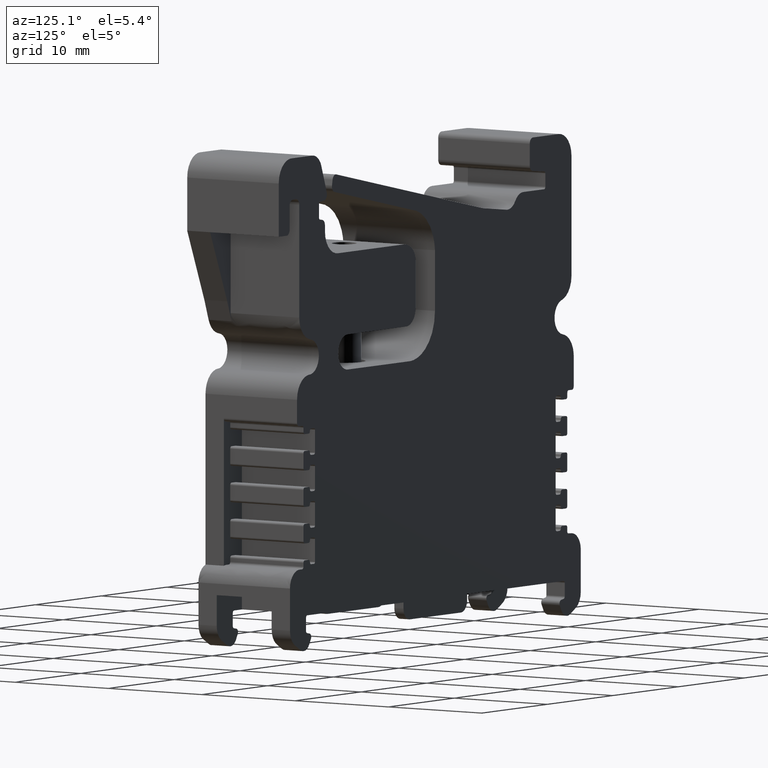
[diagram: clean part render]
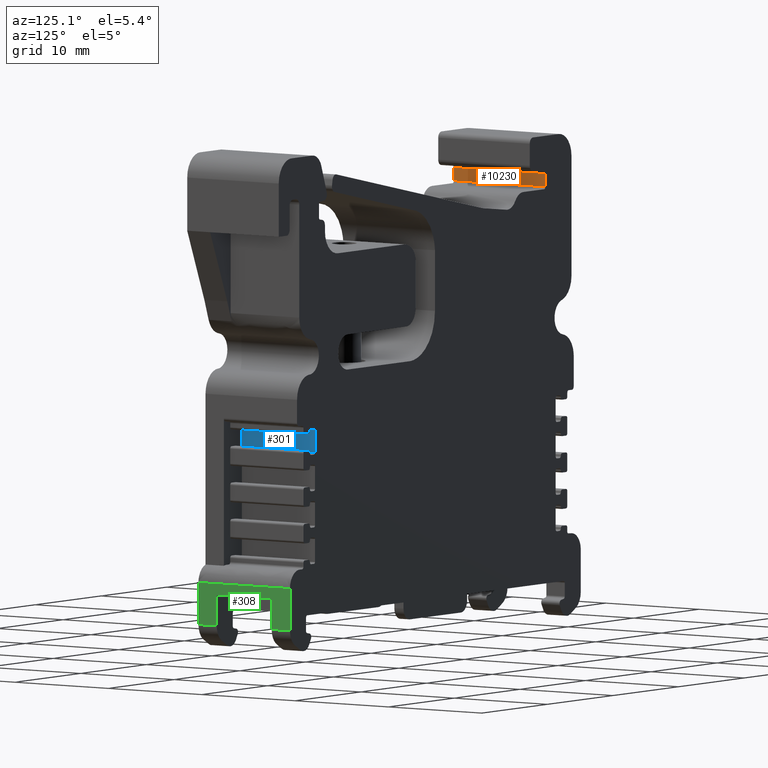
[diagram: same view with three faces highlighted in distinct colors, each labeled with its STEP entity id]
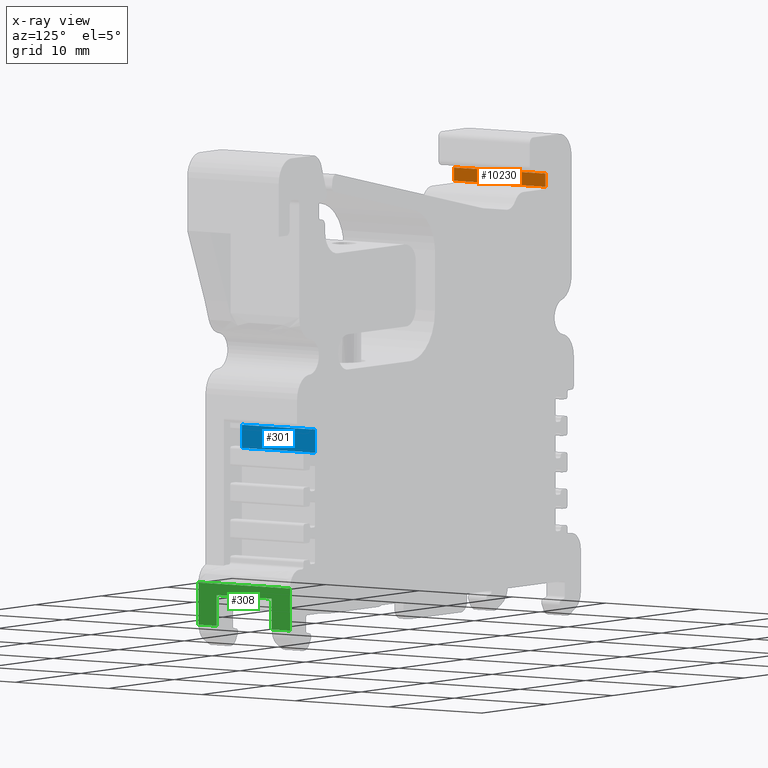
[diagram: x-ray of the same camera — body ghosted, the three highlighted faces saturated]
A machine part, auxiliary view with three faces highlighted in distinct colors.
The next image is the same camera in x-ray (body ghosted, the three faces saturated) — at least one of them is partly hidden behind the body in this view.
Their STEP definitions:

[orange] entity #10230 — the highlighted planar face has unit normal (-1, 0, 0).
#1020 = DIRECTION ( 'NONE',  ( 7.668624893001387600E-014, 0.0000000000000000000, 1.000000000000000000 ) ) ;
#1023 = LINE ( 'NONE', #1035, #3332 ) ;
#1035 = CARTESIAN_POINT ( 'NONE',  ( -16.73981417197737200, -9.901244391999824800, 34.27109814647054300 ) ) ;
#1119 = CARTESIAN_POINT ( 'NONE',  ( -16.73981417197737200, -0.1012443920222217700, 6.389607925176921600 ) ) ;
#1123 = DIRECTION ( 'NONE',  ( 0.0000000000000000000, -0.0000000000000000000, -1.000000000000000000 ) ) ;
#1134 = LINE ( 'NONE', #1119, #3372 ) ;
#2421 = PLANE ( 'NONE',  #8914 ) ;
#2422 = DIRECTION ( 'NONE',  ( -1.000000000000000000, 0.0000000000000000000, 7.668624893001387600E-014 ) ) ;
#2446 = FACE_OUTER_BOUND ( 'NONE', #4456, .T. ) ;
#2450 = DIRECTION ( 'NONE',  ( 7.668624893001387600E-014, 0.0000000000000000000, 1.000000000000000000 ) ) ;
#2458 = CARTESIAN_POINT ( 'NONE',  ( -16.73981417197737200, -147.1012443916859800, 34.27109814647054300 ) ) ;
#2818 = CARTESIAN_POINT ( 'NONE',  ( -16.73981417197730100, -0.1012443920222216900, 35.42171697142822500 ) ) ;
#3332 = VECTOR ( 'NONE', #1020, 1000.000000000000000 ) ;
#3372 = VECTOR ( 'NONE', #1123, 1000.000000000000000 ) ;
#4456 = EDGE_LOOP ( 'NONE', ( #8238, #8277, #8223, #8224 ) ) ;
#6097 = VERTEX_POINT ( 'NONE', #9555 ) ;
#6100 = VERTEX_POINT ( 'NONE', #9601 ) ;
#7210 = VERTEX_POINT ( 'NONE', #9177 ) ;
#8217 = VERTEX_POINT ( 'NONE', #2818 ) ;
#8223 = ORIENTED_EDGE ( 'NONE', *, *, #11863, .F. ) ;
#8224 = ORIENTED_EDGE ( 'NONE', *, *, #10484, .T. ) ;
#8238 = ORIENTED_EDGE ( 'NONE', *, *, #11835, .F. ) ;
#8277 = ORIENTED_EDGE ( 'NONE', *, *, #10436, .T. ) ;
#8605 = VECTOR ( 'NONE', #10698, 1000.000000000000000 ) ;
#8914 = AXIS2_PLACEMENT_3D ( 'NONE', #2458, #2422, #2450 ) ;
#9105 = VECTOR ( 'NONE', #12286, 1000.000000000000000 ) ;
#9177 = CARTESIAN_POINT ( 'NONE',  ( -16.73981417197737200, -0.1012443920222216000, 34.27109814647054300 ) ) ;
#9555 = CARTESIAN_POINT ( 'NONE',  ( -16.73981417197728300, -9.901244391999821200, 35.42171697142822500 ) ) ;
#9601 = CARTESIAN_POINT ( 'NONE',  ( -16.73981417197737200, -9.901244391999819400, 34.27109814647054300 ) ) ;
#10230 = ADVANCED_FACE ( 'NONE', ( #2446 ), #2421, .F. ) ;
#10436 = EDGE_CURVE ( 'NONE', #6100, #7210, #12254, .T. ) ;
#10484 = EDGE_CURVE ( 'NONE', #8217, #6097, #10682, .T. ) ;
#10682 = LINE ( 'NONE', #10733, #8605 ) ;
#10698 = DIRECTION ( 'NONE',  ( -0.0000000000000000000, -1.000000000000000000, -0.0000000000000000000 ) ) ;
#10733 = CARTESIAN_POINT ( 'NONE',  ( -16.73981417197727600, -5.001244392011015400, 35.42171697142822500 ) ) ;
#11835 = EDGE_CURVE ( 'NONE', #6100, #6097, #1023, .T. ) ;
#11863 = EDGE_CURVE ( 'NONE', #8217, #7210, #1134, .T. ) ;
#12252 = CARTESIAN_POINT ( 'NONE',  ( -16.73981417197737200, -5.001244392011001200, 34.27109814647054300 ) ) ;
#12254 = LINE ( 'NONE', #12252, #9105 ) ;
#12286 = DIRECTION ( 'NONE',  ( 0.0000000000000000000, 1.000000000000000000, 0.0000000000000000000 ) ) ;

[blue] entity #301 — the highlighted planar face has unit normal (1, -0, 0).
#301 = ADVANCED_FACE ( 'NONE', ( #6625 ), #6643, .T. ) ;
#4324 = EDGE_LOOP ( 'NONE', ( #7466, #7478, #7484, #7440, #7524 ) ) ;
#5123 = CARTESIAN_POINT ( 'NONE',  ( 18.35512562227523500, -0.1012443920222205800, 0.4657173789986578400 ) ) ;
#5141 = LINE ( 'NONE', #5123, #8792 ) ;
#5145 = DIRECTION ( 'NONE',  ( -0.0000000000000000000, -0.0000000000000000000, 1.000000000000000000 ) ) ;
#6275 = VERTEX_POINT ( 'NONE', #9750 ) ;
#6277 = VERTEX_POINT ( 'NONE', #9754 ) ;
#6325 = VERTEX_POINT ( 'NONE', #9812 ) ;
#6496 = VERTEX_POINT ( 'NONE', #10015 ) ;
#6504 = VERTEX_POINT ( 'NONE', #9973 ) ;
#6617 = CARTESIAN_POINT ( 'NONE',  ( 18.35512562227523500, -59.88818575177261000, 0.4657173789986578400 ) ) ;
#6625 = FACE_OUTER_BOUND ( 'NONE', #4324, .T. ) ;
#6641 = DIRECTION ( 'NONE',  ( 1.000000000000000000, -0.0000000000000000000, 0.0000000000000000000 ) ) ;
#6643 = PLANE ( 'NONE',  #8843 ) ;
#6645 = DIRECTION ( 'NONE',  ( 0.0000000000000000000, 0.0000000000000000000, -1.000000000000000000 ) ) ;
#7440 = ORIENTED_EDGE ( 'NONE', *, *, #10345, .T. ) ;
#7466 = ORIENTED_EDGE ( 'NONE', *, *, #10338, .T. ) ;
#7478 = ORIENTED_EDGE ( 'NONE', *, *, #10562, .T. ) ;
#7484 = ORIENTED_EDGE ( 'NONE', *, *, #10512, .T. ) ;
#7524 = ORIENTED_EDGE ( 'NONE', *, *, #11260, .T. ) ;
#8643 = VECTOR ( 'NONE', #10785, 1000.000000000000000 ) ;
#8654 = VECTOR ( 'NONE', #10940, 1000.000000000000000 ) ;
#8792 = VECTOR ( 'NONE', #5145, 1000.000000000000000 ) ;
#8843 = AXIS2_PLACEMENT_3D ( 'NONE', #6617, #6641, #6645 ) ;
#9032 = VECTOR ( 'NONE', #11973, 1000.000000000000000 ) ;
#9038 = VECTOR ( 'NONE', #11984, 1000.000000000000000 ) ;
#9750 = CARTESIAN_POINT ( 'NONE',  ( 18.35512562226397600, -7.941244392004303900, 13.57170467491973100 ) ) ;
#9754 = CARTESIAN_POINT ( 'NONE',  ( 18.35512562226074700, -7.941244392004303900, 15.60628824534674800 ) ) ;
#9812 = CARTESIAN_POINT ( 'NONE',  ( 18.35512562225272900, -0.6012443920222214600, 13.57170467495528700 ) ) ;
#9973 = CARTESIAN_POINT ( 'NONE',  ( 18.35512562227523500, -0.1012443920222205800, 13.57170467488417200 ) ) ;
#10015 = CARTESIAN_POINT ( 'NONE',  ( 18.35512562226364300, -0.1012443920222232300, 15.60628824535590200 ) ) ;
#10338 = EDGE_CURVE ( 'NONE', #6496, #6277, #11958, .T. ) ;
#10345 = EDGE_CURVE ( 'NONE', #6325, #6504, #11961, .T. ) ;
#10512 = EDGE_CURVE ( 'NONE', #6275, #6325, #10779, .T. ) ;
#10562 = EDGE_CURVE ( 'NONE', #6277, #6275, #10973, .T. ) ;
#10779 = LINE ( 'NONE', #10780, #8643 ) ;
#10780 = CARTESIAN_POINT ( 'NONE',  ( 18.35512562227523500, -59.88818575177261000, 13.57170467488417700 ) ) ;
#10785 = DIRECTION ( 'NONE',  ( 0.0000000000000000000, 1.000000000000000000, 0.0000000000000000000 ) ) ;
#10940 = DIRECTION ( 'NONE',  ( 0.0000000000000000000, 0.0000000000000000000, -1.000000000000000000 ) ) ;
#10951 = CARTESIAN_POINT ( 'NONE',  ( 18.35512562227523100, -7.941244392004303900, 16.08886907158200700 ) ) ;
#10973 = LINE ( 'NONE', #10951, #8654 ) ;
#11260 = EDGE_CURVE ( 'NONE', #6504, #6496, #5141, .T. ) ;
#11949 = CARTESIAN_POINT ( 'NONE',  ( 18.35512562227523500, -59.88818575177261000, 15.60628824539253000 ) ) ;
#11958 = LINE ( 'NONE', #11949, #9038 ) ;
#11961 = LINE ( 'NONE', #11971, #9032 ) ;
#11971 = CARTESIAN_POINT ( 'NONE',  ( 18.35512562227523500, -59.88818575177261000, 13.57170467488417200 ) ) ;
#11973 = DIRECTION ( 'NONE',  ( 0.0000000000000000000, 1.000000000000000000, 0.0000000000000000000 ) ) ;
#11984 = DIRECTION ( 'NONE',  ( -0.0000000000000000000, -1.000000000000000000, -0.0000000000000000000 ) ) ;

[green] entity #308 — the highlighted planar face has unit normal (-1, 0, 0).
#308 = ADVANCED_FACE ( 'NONE', ( #6722 ), #6671, .F. ) ;
#575 = LINE ( 'NONE', #596, #3253 ) ;
#580 = DIRECTION ( 'NONE',  ( -0.0000000000000000000, 0.0000000000000000000, -1.000000000000000000 ) ) ;
#596 = CARTESIAN_POINT ( 'NONE',  ( 22.17426153200332500, -9.901244391999814100, 31.59857051678419300 ) ) ;
#1297 = DIRECTION ( 'NONE',  ( 0.0000000000000000000, -0.0000000000000000000, -1.000000000000000000 ) ) ;
#1320 = LINE ( 'NONE', #1322, #3386 ) ;
#1322 = CARTESIAN_POINT ( 'NONE',  ( 22.17426153200264200, -0.1012443920222217700, 7.389607925176921600 ) ) ;
#1724 = CARTESIAN_POINT ( 'NONE',  ( 22.17426153200323200, -7.941244392004303900, 1.426529347772220300 ) ) ;
#1735 = LINE ( 'NONE', #1724, #3426 ) ;
#1736 = DIRECTION ( 'NONE',  ( -1.830822437952517300E-013, -0.0000000000000000000, -1.000000000000000000 ) ) ;
#1745 = CARTESIAN_POINT ( 'NONE',  ( 22.17426153200323200, -2.061244392017741200, 1.426529347772220300 ) ) ;
#1746 = DIRECTION ( 'NONE',  ( 1.830822437952517300E-013, 0.0000000000000000000, 1.000000000000000000 ) ) ;
#1764 = LINE ( 'NONE', #1745, #3432 ) ;
#1774 = DIRECTION ( 'NONE',  ( -0.0000000000000000000, -1.000000000000000000, 0.0000000000000000000 ) ) ;
#1778 = LINE ( 'NONE', #1779, #3435 ) ;
#1779 = CARTESIAN_POINT ( 'NONE',  ( 22.17426153200314000, -2.061244392017741200, 0.9093318955481219900 ) ) ;
#3253 = VECTOR ( 'NONE', #580, 1000.000000000000000 ) ;
#3386 = VECTOR ( 'NONE', #1297, 1000.000000000000000 ) ;
#3426 = VECTOR ( 'NONE', #1736, 1000.000000000000000 ) ;
#3432 = VECTOR ( 'NONE', #1746, 1000.000000000000000 ) ;
#3435 = VECTOR ( 'NONE', #1774, 1000.000000000000000 ) ;
#3727 = ORIENTED_EDGE ( 'NONE', *, *, #11499, .F. ) ;
#3760 = ORIENTED_EDGE ( 'NONE', *, *, #10409, .F. ) ;
#3785 = ORIENTED_EDGE ( 'NONE', *, *, #10316, .F. ) ;
#3808 = ORIENTED_EDGE ( 'NONE', *, *, #11721, .T. ) ;
#3817 = ORIENTED_EDGE ( 'NONE', *, *, #11492, .F. ) ;
#3827 = ORIENTED_EDGE ( 'NONE', *, *, #11398, .F. ) ;
#3834 = ORIENTED_EDGE ( 'NONE', *, *, #10383, .F. ) ;
#3852 = ORIENTED_EDGE ( 'NONE', *, *, #11502, .F. ) ;
#4434 = EDGE_LOOP ( 'NONE', ( #3808, #3834, #3817, #3852, #3727, #3785, #3827, #3760 ) ) ;
#6076 = VERTEX_POINT ( 'NONE', #9558 ) ;
#6099 = VERTEX_POINT ( 'NONE', #9610 ) ;
#6240 = VERTEX_POINT ( 'NONE', #9723 ) ;
#6249 = VERTEX_POINT ( 'NONE', #9746 ) ;
#6294 = VERTEX_POINT ( 'NONE', #9789 ) ;
#6349 = VERTEX_POINT ( 'NONE', #9899 ) ;
#6556 = VERTEX_POINT ( 'NONE', #10048 ) ;
#6580 = VERTEX_POINT ( 'NONE', #10026 ) ;
#6671 = PLANE ( 'NONE',  #8845 ) ;
#6678 = DIRECTION ( 'NONE',  ( 1.830822437952517300E-013, 0.0000000000000000000, 1.000000000000000000 ) ) ;
#6686 = DIRECTION ( 'NONE',  ( -1.000000000000000000, 0.0000000000000000000, 1.830822437952517300E-013 ) ) ;
#6714 = CARTESIAN_POINT ( 'NONE',  ( 22.17426153200323200, -2.061244392017741200, 1.426529347772220300 ) ) ;
#6722 = FACE_OUTER_BOUND ( 'NONE', #4434, .T. ) ;
#8845 = AXIS2_PLACEMENT_3D ( 'NONE', #6714, #6686, #6678 ) ;
#8983 = VECTOR ( 'NONE', #12368, 1000.000000000000000 ) ;
#9056 = VECTOR ( 'NONE', #12111, 1000.000000000000000 ) ;
#9124 = VECTOR ( 'NONE', #12178, 1000.000000000000000 ) ;
#9558 = CARTESIAN_POINT ( 'NONE',  ( 22.17426153200332500, -9.901244391999814100, 1.917658880644913300 ) ) ;
#9610 = CARTESIAN_POINT ( 'NONE',  ( 22.17426153200282400, -9.901244391999814100, -1.786792463967416600 ) ) ;
#9723 = CARTESIAN_POINT ( 'NONE',  ( 22.17426153200314000, -7.941244392004303900, 0.9093318955481219900 ) ) ;
#9746 = CARTESIAN_POINT ( 'NONE',  ( 22.17426153200314000, -2.061244392017741200, 0.9093318955481219900 ) ) ;
#9789 = CARTESIAN_POINT ( 'NONE',  ( 22.17426153200264900, -2.061244392017741200, -1.786792463967416000 ) ) ;
#9899 = CARTESIAN_POINT ( 'NONE',  ( 22.17426153200264900, -7.941244392004305700, -1.786792463967416400 ) ) ;
#10026 = CARTESIAN_POINT ( 'NONE',  ( 22.17426153200316100, -0.1012443920222222300, 1.917658880644913100 ) ) ;
#10048 = CARTESIAN_POINT ( 'NONE',  ( 22.17426153200264900, -0.1012443920222213700, -1.786792463967416200 ) ) ;
#10316 = EDGE_CURVE ( 'NONE', #6556, #6294, #12347, .T. ) ;
#10383 = EDGE_CURVE ( 'NONE', #6349, #6099, #12106, .T. ) ;
#10409 = EDGE_CURVE ( 'NONE', #6076, #6580, #12206, .T. ) ;
#11398 = EDGE_CURVE ( 'NONE', #6580, #6556, #1320, .T. ) ;
#11492 = EDGE_CURVE ( 'NONE', #6240, #6349, #1735, .T. ) ;
#11499 = EDGE_CURVE ( 'NONE', #6294, #6249, #1764, .T. ) ;
#11502 = EDGE_CURVE ( 'NONE', #6249, #6240, #1778, .T. ) ;
#11721 = EDGE_CURVE ( 'NONE', #6076, #6099, #575, .T. ) ;
#12091 = CARTESIAN_POINT ( 'NONE',  ( 22.17426153200265300, -8.921244392002060800, -1.786792463967416900 ) ) ;
#12106 = LINE ( 'NONE', #12091, #9056 ) ;
#12111 = DIRECTION ( 'NONE',  ( 0.0000000000000000000, -1.000000000000000000, 0.0000000000000000000 ) ) ;
#12178 = DIRECTION ( 'NONE',  ( 0.0000000000000000000, 1.000000000000000000, -0.0000000000000000000 ) ) ;
#12181 = CARTESIAN_POINT ( 'NONE',  ( 22.17426153200332500, -2.061244392017741200, 1.917658880644912900 ) ) ;
#12206 = LINE ( 'NONE', #12181, #9124 ) ;
#12347 = LINE ( 'NONE', #12350, #8983 ) ;
#12350 = CARTESIAN_POINT ( 'NONE',  ( 22.17426153200264200, -2.061244392017741200, -1.786792463967415500 ) ) ;
#12368 = DIRECTION ( 'NONE',  ( -0.0000000000000000000, -1.000000000000000000, 0.0000000000000000000 ) ) ;